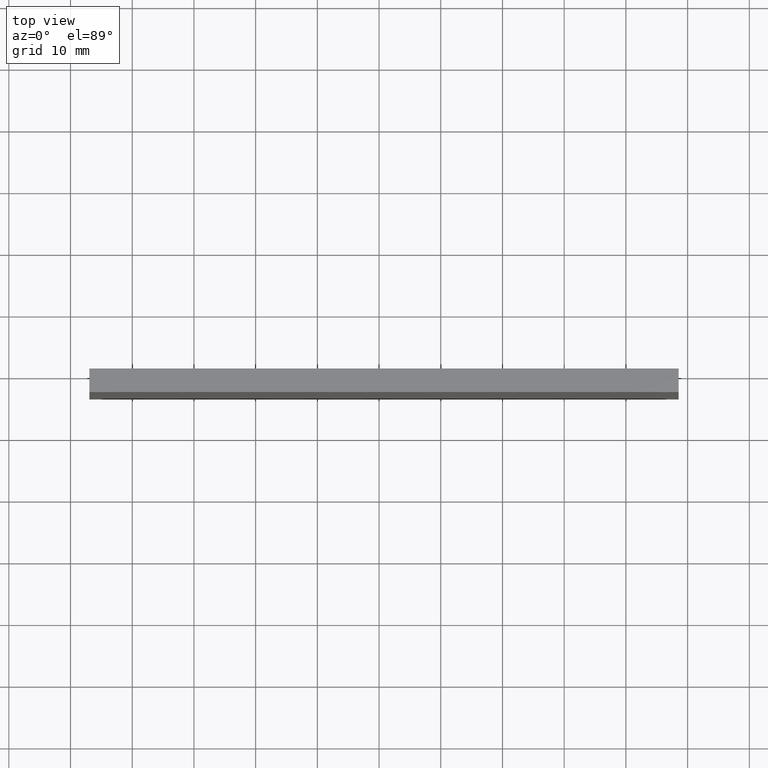
[diagram: clean part render]
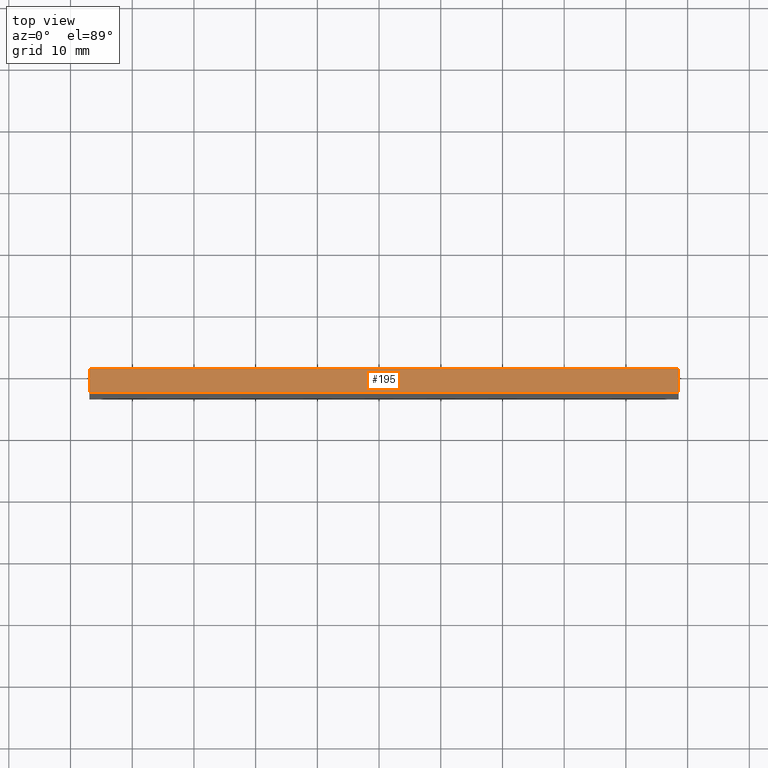
[diagram: same view with one face highlighted and labeled with its STEP entity id]
A machine part, top view. The second image highlights one B-rep face of the part: STEP entity #195.
In plain terms, the highlighted planar face has unit normal (0, 0, 1).
Its self-contained STEP definition (entity closure, byte-faithful):
#25=PLANE('',#227);
#35=FACE_OUTER_BOUND('',#45,.T.);
#45=EDGE_LOOP('',(#161,#162,#163,#164));
#67=LINE('',#324,#83);
#68=LINE('',#327,#84);
#69=LINE('',#329,#85);
#70=LINE('',#330,#86);
#83=VECTOR('',#271,0.393700787401575);
#84=VECTOR('',#274,0.393700787401575);
#85=VECTOR('',#275,0.393700787401575);
#86=VECTOR('',#276,0.393700787401575);
#109=VERTEX_POINT('',#320);
#110=VERTEX_POINT('',#322);
#111=VERTEX_POINT('',#326);
#112=VERTEX_POINT('',#328);
#131=EDGE_CURVE('',#109,#110,#67,.T.);
#132=EDGE_CURVE('',#111,#109,#68,.T.);
#133=EDGE_CURVE('',#112,#110,#69,.T.);
#134=EDGE_CURVE('',#111,#112,#70,.T.);
#161=ORIENTED_EDGE('',*,*,#132,.T.);
#162=ORIENTED_EDGE('',*,*,#131,.T.);
#163=ORIENTED_EDGE('',*,*,#133,.F.);
#164=ORIENTED_EDGE('',*,*,#134,.F.);
#195=ADVANCED_FACE('',(#35),#25,.T.);
#227=AXIS2_PLACEMENT_3D('',#325,#272,#273);
#271=DIRECTION('',(0.,1.,0.));
#272=DIRECTION('center_axis',(4.64995403176896E-17,0.,1.));
#273=DIRECTION('ref_axis',(1.,0.,-4.64995403176896E-17));
#274=DIRECTION('',(1.,0.,-4.64995403176896E-17));
#275=DIRECTION('',(1.,0.,-4.64995403176896E-17));
#276=DIRECTION('',(0.,1.,0.));
#320=CARTESIAN_POINT('',(3.88,0.26,-0.12));
#322=CARTESIAN_POINT('',(3.88,0.41,-0.12));
#324=CARTESIAN_POINT('',(3.88,0.26,-0.12));
#325=CARTESIAN_POINT('Origin',(0.12,0.26,-0.12));
#326=CARTESIAN_POINT('',(0.12,0.26,-0.12));
#327=CARTESIAN_POINT('',(0.12,0.26,-0.12));
#328=CARTESIAN_POINT('',(0.12,0.41,-0.12));
#329=CARTESIAN_POINT('',(0.12,0.41,-0.12));
#330=CARTESIAN_POINT('',(0.12,0.26,-0.12));